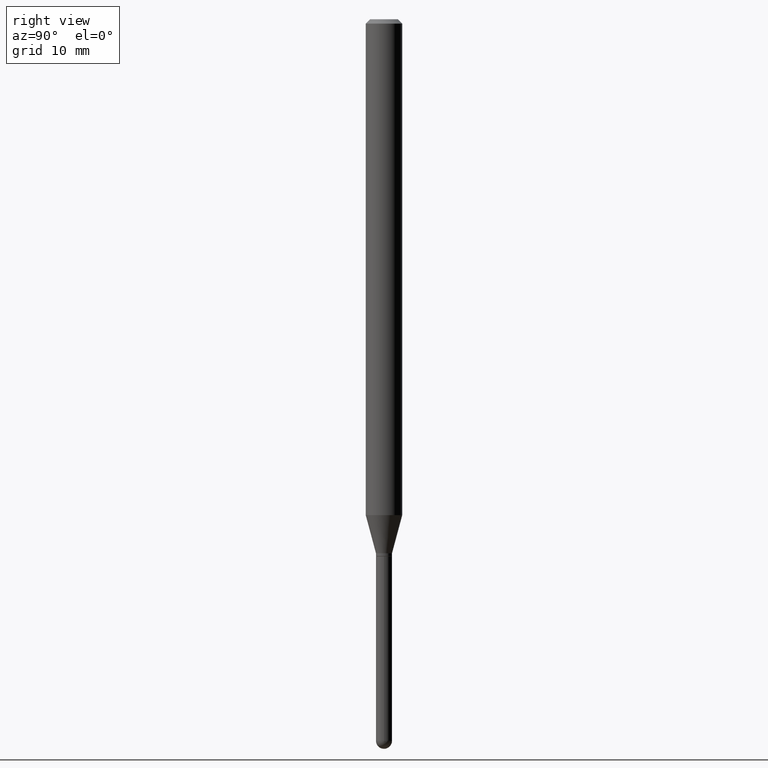
[diagram: clean part render]
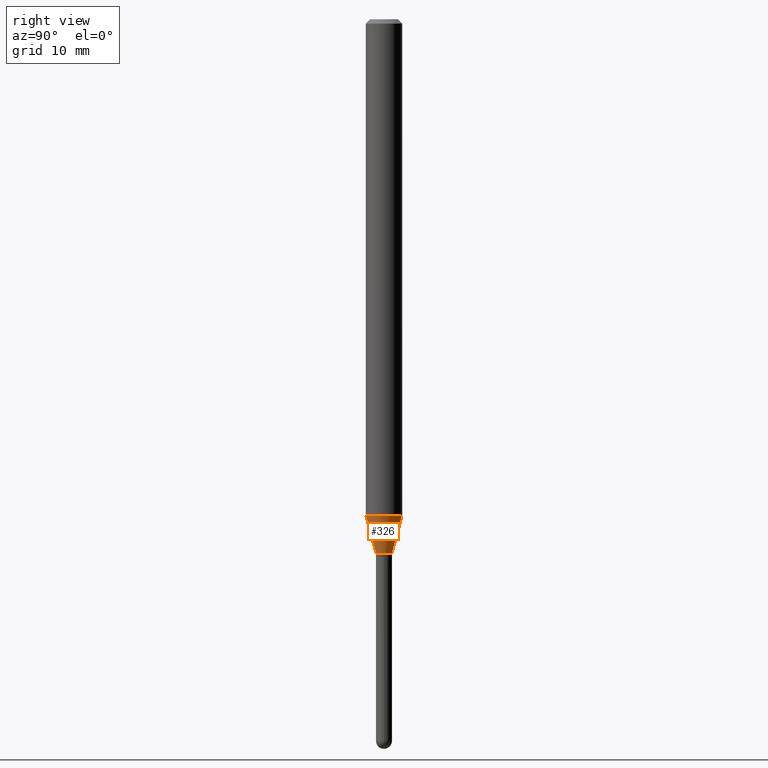
[diagram: same view with one face highlighted and labeled with its STEP entity id]
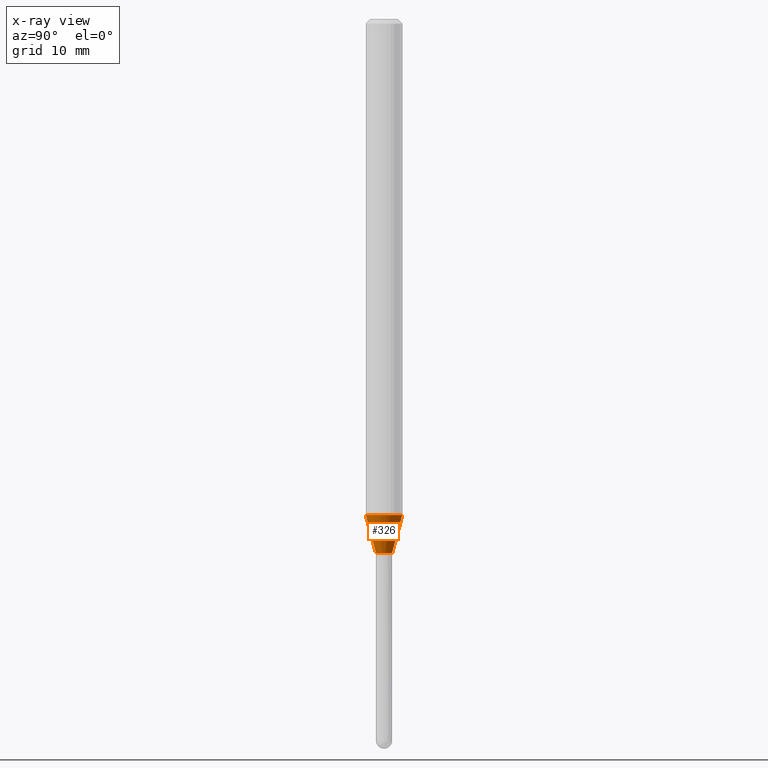
[diagram: x-ray of the same camera — body ghosted, the highlighted face saturated]
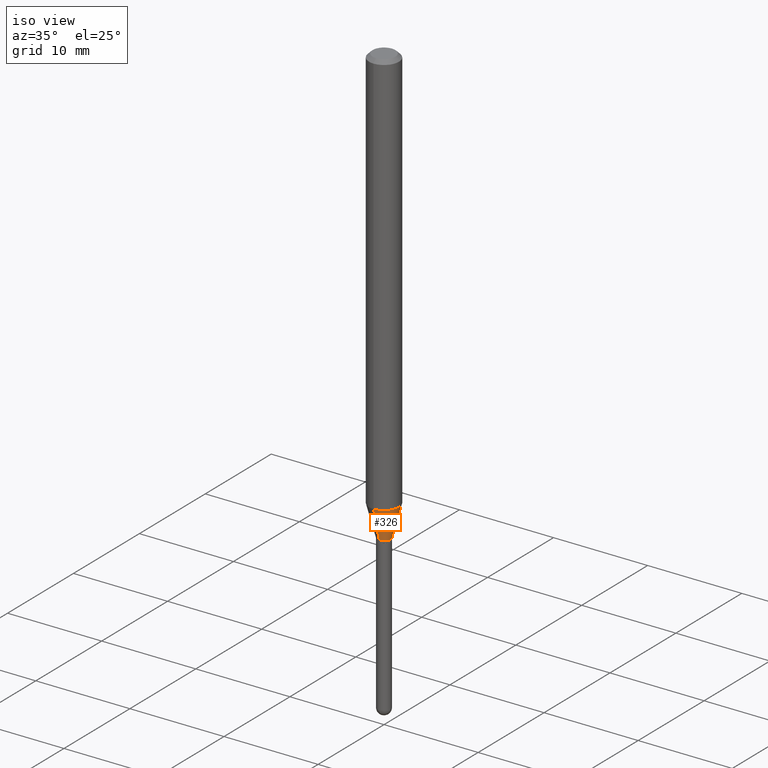
[diagram: same view with one face highlighted and labeled with its STEP entity id]
A machine part, right view. The second image highlights one B-rep face of the part: STEP entity #326.
The next image is the same camera in x-ray: the body ghosted, the highlighted face saturated — about 0% of this face is hidden behind the body in this view.
A second angle (iso view) of the same face is appended — the face is thin or edge-on in the first view.
In plain terms, the highlighted conical surface has half-angle 15 deg.
Its self-contained STEP definition (entity closure, byte-faithful):
#4 = EDGE_CURVE ( 'NONE', #499, #385, #225, .T. ) ;
#31 = AXIS2_PLACEMENT_3D ( 'NONE', #258, #447, #489 ) ;
#65 = ORIENTED_EDGE ( 'NONE', *, *, #471, .T. ) ;
#85 = DIRECTION ( 'NONE',  ( -2.445464170802400853E-29, 3.491487976975052738E-15, 1.000000000000000000 ) ) ;
#98 = CARTESIAN_POINT ( 'NONE',  ( -1.920314736363269849E-16, -0.02750000000000631106, -1.829999999999999849 ) ) ;
#104 = CARTESIAN_POINT ( 'NONE',  ( 3.197442310920880154E-16, 0.02749999999999352962, -1.829999999999999849 ) ) ;
#120 = AXIS2_PLACEMENT_3D ( 'NONE', #405, #438, #483 ) ;
#123 = CONICAL_SURFACE ( 'NONE', #120, 0.02749999999999992034, 0.2617993877991504625 ) ;
#125 = DIRECTION ( 'NONE',  ( -6.982962677686265922E-15, -1.000000000000000000, 4.370956789862821150E-15 ) ) ;
#163 = LINE ( 'NONE', #332, #388 ) ;
#225 = LINE ( 'NONE', #394, #445 ) ;
#234 = EDGE_LOOP ( 'NONE', ( #65, #302, #275, #339 ) ) ;
#237 = FACE_OUTER_BOUND ( 'NONE', #234, .T. ) ;
#239 = AXIS2_PLACEMENT_3D ( 'NONE', #322, #85, #125 ) ;
#258 = CARTESIAN_POINT ( 'NONE',  ( 4.475199432568393700E-29, -6.389422997864345911E-15, -1.829999999999999849 ) ) ;
#259 = EDGE_CURVE ( 'NONE', #368, #385, #452, .T. ) ;
#263 = CIRCLE ( 'NONE', #31, 0.02749999999999992034 ) ;
#275 = ORIENTED_EDGE ( 'NONE', *, *, #259, .F. ) ;
#276 = CARTESIAN_POINT ( 'NONE',  ( 4.440892098501039328E-16, 0.06249999999999404643, -1.699378221735089678 ) ) ;
#302 = ORIENTED_EDGE ( 'NONE', *, *, #4, .T. ) ;
#322 = CARTESIAN_POINT ( 'NONE',  ( 4.155768553895059531E-29, -5.933358629521309824E-15, -1.699378221735089456 ) ) ;
#326 = ADVANCED_FACE ( 'NONE', ( #237 ), #123, .T. ) ;
#332 = CARTESIAN_POINT ( 'NONE',  ( -1.920314736363269849E-16, -0.02750000000000631106, -1.829999999999999849 ) ) ;
#339 = ORIENTED_EDGE ( 'NONE', *, *, #383, .F. ) ;
#368 = VERTEX_POINT ( 'NONE', #393 ) ;
#383 = EDGE_CURVE ( 'NONE', #433, #368, #163, .T. ) ;
#385 = VERTEX_POINT ( 'NONE', #276 ) ;
#388 = VECTOR ( 'NONE', #488, 39.37007874015748854 ) ;
#393 = CARTESIAN_POINT ( 'NONE',  ( -4.364351673553502542E-16, -0.06250000000000595357, -1.699378221735089234 ) ) ;
#394 = CARTESIAN_POINT ( 'NONE',  ( 1.953992523340717283E-16, 0.02749999999999352962, -1.829999999999999849 ) ) ;
#405 = CARTESIAN_POINT ( 'NONE',  ( 4.475199432568393700E-29, -6.389422997864345911E-15, -1.829999999999999849 ) ) ;
#433 = VERTEX_POINT ( 'NONE', #98 ) ;
#436 = DIRECTION ( 'NONE',  ( 1.839019923739601499E-15, 0.2588190451025251249, 0.9659258262890670910 ) ) ;
#438 = DIRECTION ( 'NONE',  ( -2.445464170802400853E-29, 3.491487976975052738E-15, 1.000000000000000000 ) ) ;
#445 = VECTOR ( 'NONE', #436, 39.37007874015748854 ) ;
#447 = DIRECTION ( 'NONE',  ( -2.445464170802400853E-29, 3.491487976975052738E-15, 1.000000000000000000 ) ) ;
#452 = CIRCLE ( 'NONE', #239, 0.06250000000000000000 ) ;
#471 = EDGE_CURVE ( 'NONE', #433, #499, #263, .T. ) ;
#483 = DIRECTION ( 'NONE',  ( -6.982962677686265922E-15, -1.000000000000000000, 0.000000000000000000 ) ) ;
#488 = DIRECTION ( 'NONE',  ( -1.807323732225331323E-15, -0.2588190451025183525, 0.9659258262890689783 ) ) ;
#489 = DIRECTION ( 'NONE',  ( -6.982962677686265922E-15, -1.000000000000000000, 0.000000000000000000 ) ) ;
#499 = VERTEX_POINT ( 'NONE', #104 ) ;